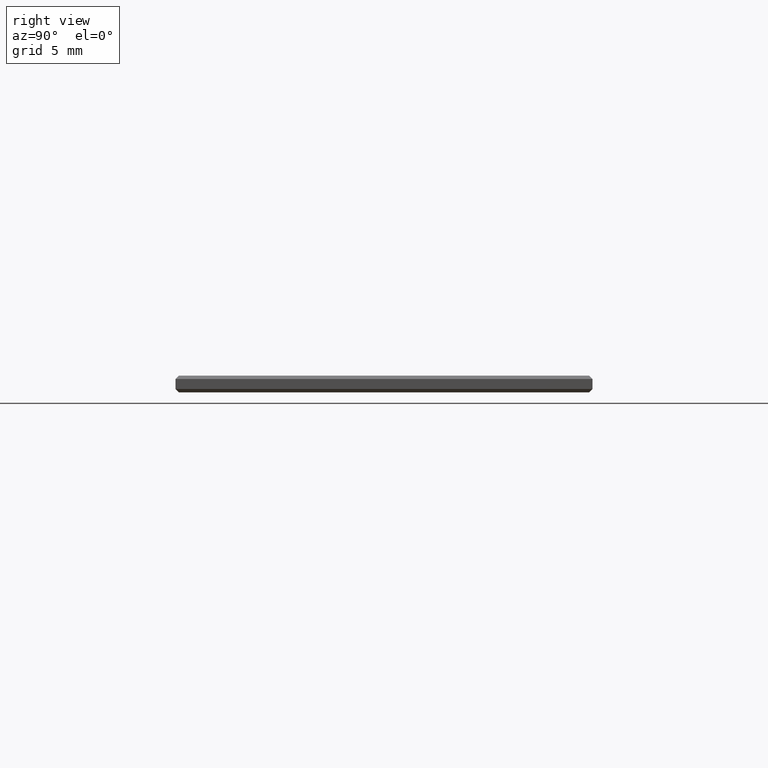
[diagram: clean part render]
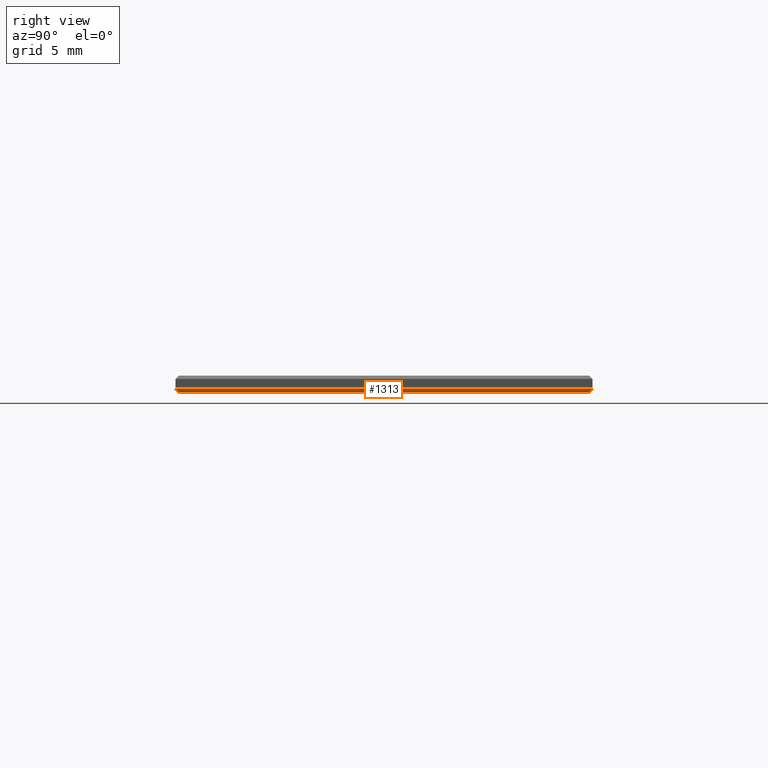
[diagram: same view with one face highlighted and labeled with its STEP entity id]
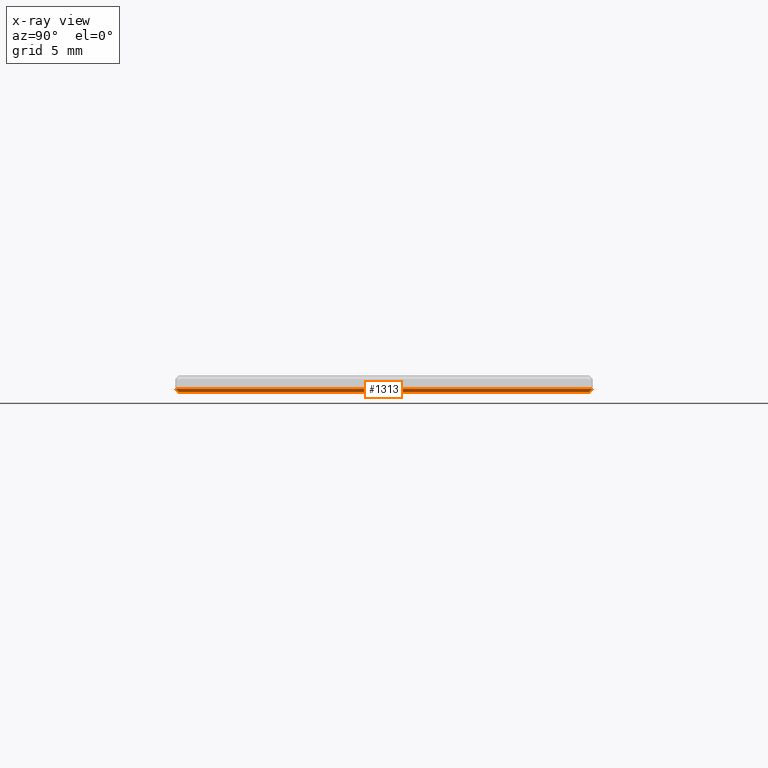
[diagram: x-ray of the same camera — body ghosted, the highlighted face saturated]
A machine part, right view. The second image highlights one B-rep face of the part: STEP entity #1313.
The next image is the same camera in x-ray: the body ghosted, the highlighted face saturated — about 0% of this face is hidden behind the body in this view.
In plain terms, the highlighted planar face has unit normal (-0.7071, -0, 0.7071).
Its self-contained STEP definition (entity closure, byte-faithful):
#47 = EDGE_CURVE ( 'NONE', #4573, #6079, #1671, .T. ) ;
#116 = VECTOR ( 'NONE', #4387, 1000.000000000000000 ) ;
#206 = CARTESIAN_POINT ( 'NONE',  ( 6.000000000000411200, 0.5000000000001149100, -12.29999999999988500 ) ) ;
#260 = CARTESIAN_POINT ( 'NONE',  ( 17.79999999999999700, 2.470246229790972900E-015, -0.5000000000000000000 ) ) ;
#473 = VECTOR ( 'NONE', #6320, 1000.000000000000000 ) ;
#519 = CARTESIAN_POINT ( 'NONE',  ( 17.79999999999999700, -12.29999999999999000, -0.5000000000000000000 ) ) ;
#594 = LINE ( 'NONE', #5781, #6221 ) ;
#731 = DIRECTION ( 'NONE',  ( -0.5773502691896156300, -0.5773502691896308400, -0.5773502691896308400 ) ) ;
#840 = CARTESIAN_POINT ( 'NONE',  ( 17.99999999999999300, 12.50000000000000500, -0.2999999999999942700 ) ) ;
#868 = PLANE ( 'NONE',  #6256 ) ;
#887 = ORIENTED_EDGE ( 'NONE', *, *, #47, .F. ) ;
#1057 = EDGE_LOOP ( 'NONE', ( #1115, #1813, #3073, #887 ) ) ;
#1115 = ORIENTED_EDGE ( 'NONE', *, *, #6213, .F. ) ;
#1226 = EDGE_CURVE ( 'NONE', #6246, #2665, #2567, .T. ) ;
#1313 = ADVANCED_FACE ( 'NONE', ( #4957 ), #868, .F. ) ;
#1489 = DIRECTION ( 'NONE',  ( -1.387778780781445700E-016, 1.000000000000000000, -0.0000000000000000000 ) ) ;
#1671 = LINE ( 'NONE', #5816, #473 ) ;
#1813 = ORIENTED_EDGE ( 'NONE', *, *, #1226, .F. ) ;
#2228 = VECTOR ( 'NONE', #731, 999.9999999999998900 ) ;
#2567 = LINE ( 'NONE', #260, #116 ) ;
#2665 = VERTEX_POINT ( 'NONE', #519 ) ;
#3073 = ORIENTED_EDGE ( 'NONE', *, *, #5741, .F. ) ;
#3075 = CARTESIAN_POINT ( 'NONE',  ( 17.99999999999999300, 12.50000000000000500, -0.2999999999999942700 ) ) ;
#3602 = LINE ( 'NONE', #206, #2228 ) ;
#3744 = CARTESIAN_POINT ( 'NONE',  ( 17.79999999999999400, 12.30000000000000100, -0.5000000000000000000 ) ) ;
#4387 = DIRECTION ( 'NONE',  ( 1.387778780781445700E-016, -1.000000000000000000, 0.0000000000000000000 ) ) ;
#4559 = DIRECTION ( 'NONE',  ( -0.7071067811865566800, -9.813077866773721400E-017, 0.7071067811865383600 ) ) ;
#4573 = VERTEX_POINT ( 'NONE', #4984 ) ;
#4957 = FACE_OUTER_BOUND ( 'NONE', #1057, .T. ) ;
#4984 = CARTESIAN_POINT ( 'NONE',  ( 17.99999999999999600, -12.49999999999999500, -0.2999999999999942700 ) ) ;
#5741 = EDGE_CURVE ( 'NONE', #6079, #6246, #3602, .T. ) ;
#5781 = CARTESIAN_POINT ( 'NONE',  ( 9.666666666666731800, -4.166666666666515100, -8.633333333333473200 ) ) ;
#5816 = CARTESIAN_POINT ( 'NONE',  ( 17.99999999999999300, 12.50000000000000500, -0.2999999999999942700 ) ) ;
#6079 = VERTEX_POINT ( 'NONE', #3075 ) ;
#6213 = EDGE_CURVE ( 'NONE', #2665, #4573, #594, .T. ) ;
#6221 = VECTOR ( 'NONE', #6283, 999.9999999999998900 ) ;
#6246 = VERTEX_POINT ( 'NONE', #3744 ) ;
#6256 = AXIS2_PLACEMENT_3D ( 'NONE', #840, #4559, #1489 ) ;
#6283 = DIRECTION ( 'NONE',  ( 0.5773502691896157400, -0.5773502691896307300, 0.5773502691896307300 ) ) ;
#6320 = DIRECTION ( 'NONE',  ( -1.387778780781445700E-016, 1.000000000000000000, -0.0000000000000000000 ) ) ;